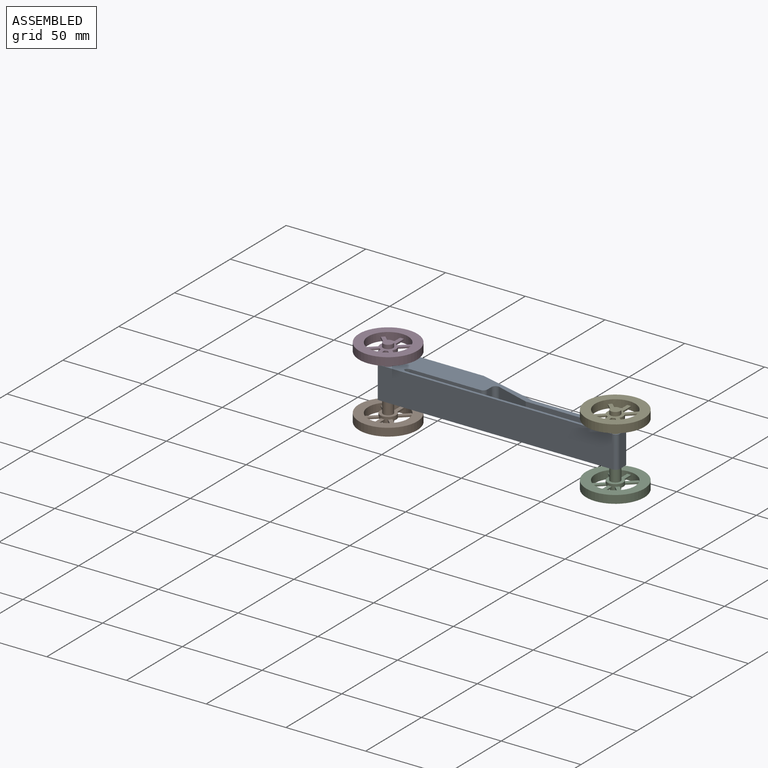
[diagram: assembled view]
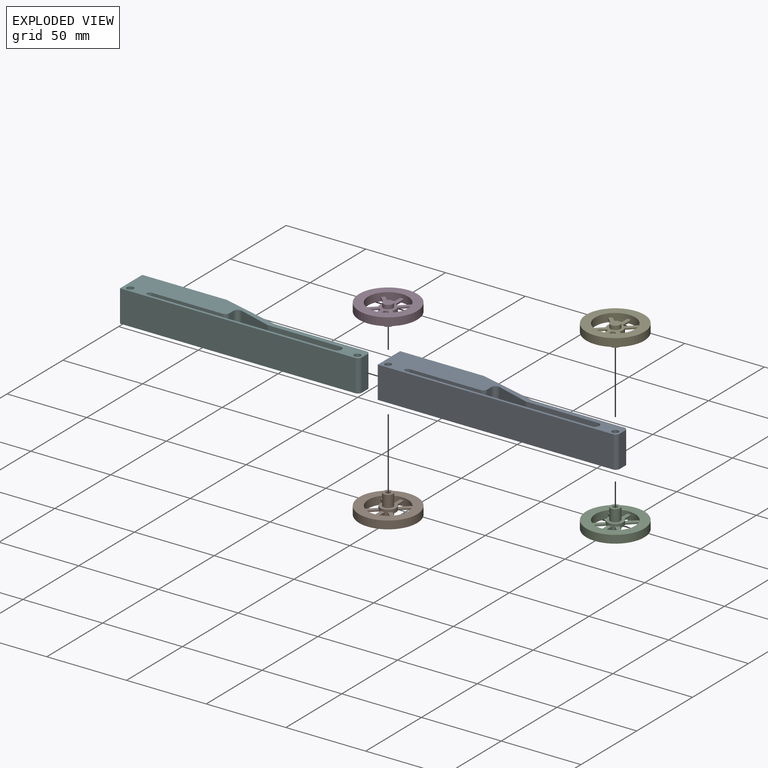
[diagram: exploded view]
GUIDED TOUR — MATED ASSEMBLY (Onshape document 84d9956565eaad3d689dac79, AutoMate assembly 84d9956565eaad3d689dac79_f02c0e8711fbdbb6772ed3fe_eb2f620efcead3a8645174b0_default)

This assembly has 6 components, labeled P0..P5 below (a component is one placed occurrence of a part; the same part can appear more than once), held together by 4 mates. A mate is a constraint between two components; its type names the relative motion it leaves free:
  REVOLUTE — leaves rotation about the listed axis free (a hinge).
Axis/direction vectors are unit vectors and 'through' points are millimeter coordinates, both in the assembly's world frame.

MATES
  1. REVOLUTE "Revolute 1": P4 <-> P0, axis (0.000, 0.000, -1.000) through (40.41, 37.32, 59.11) mm
  2. REVOLUTE "Revolute 3": P3 <-> P0, axis (0.000, 0.000, -1.000) through (-102.06, 37.32, 59.11) mm
  3. REVOLUTE "Revolute 4": P1 <-> P0, axis (0.000, 0.000, 1.000) through (-102.06, 37.32, 39.11) mm
  4. REVOLUTE "Revolute 2": P2 <-> P0, axis (0.000, 0.000, 1.000) through (40.41, 37.32, 39.11) mm

ASSEMBLY ORDER
  1. P0 — the base component [order heuristic]
  2. P5 — core [order heuristic]
  3. P2 [order verified]
  4. P1 [order verified]
  5. P3 [order verified]
  6. P4 [order verified]
Order-tag legend:
  [order verified] — this step's position reverses a verified removal order: the component was checked to insert without passing through the ones already placed.
  [order heuristic] — the first 2 components form the assembly's core: parts whose collision-free extraction could not be verified, listed in mate-graph order.

Of the 6 components, 2 carry the full construction recipe — the FeatureScript program that regenerates the part's solid from scratch; the rest are supplied as boundary geometry only.
Each toured component is shown spotlighted twice — in the assembled view, then in the exploded view, where a leader line traces a displaced component back to its assembled socket (saturated green if recipe-attached, orange if geometry-only; every other component desaturated gray) — followed by its recipe or geometry summary and the mates that hold it.
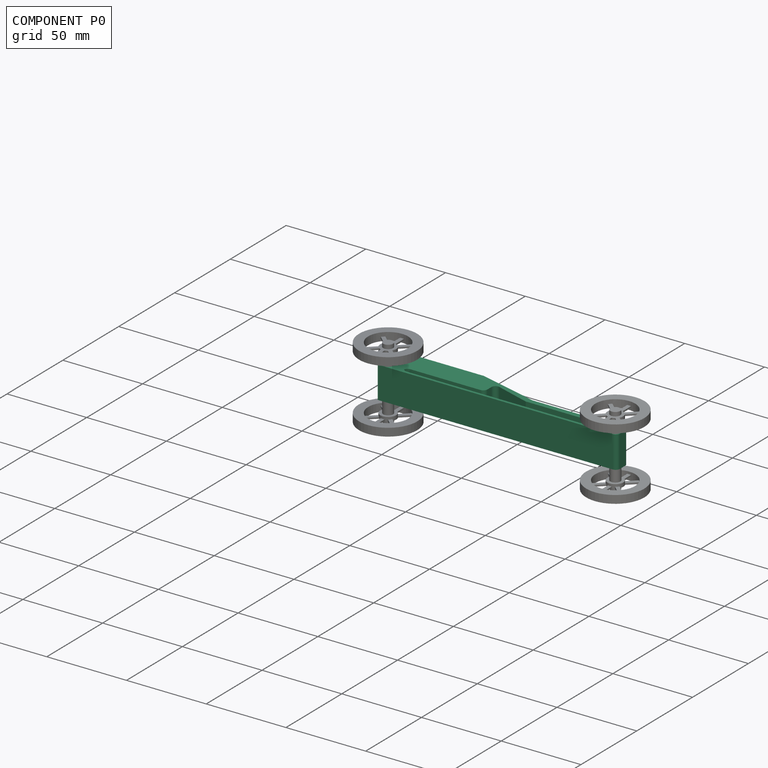
[diagram: component P0 — assembled]
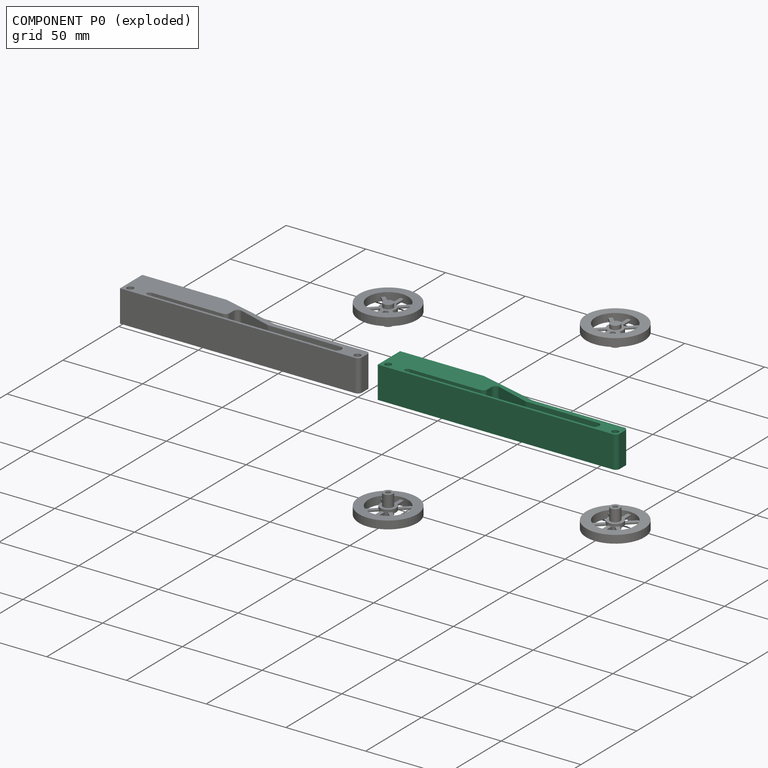
[diagram: component P0 — exploded]
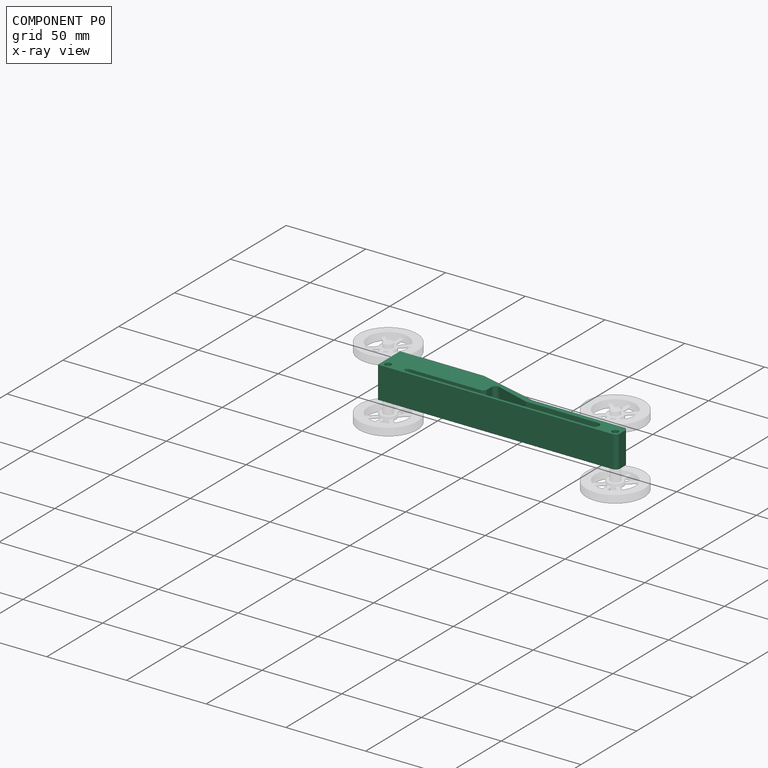
[diagram: component P0 — x-ray view]
COMPONENT P0 — recipe-attached (CADFS 00515033, mesh-verified: the recipe's output STEP matches this component's geometry to below the mesh-comparison resolution (tessellation chordal tolerance ~0.229 mm)).
Held by: REVOLUTE mate "Revolute 1" to P4; REVOLUTE mate "Revolute 3" to P3; REVOLUTE mate "Revolute 4" to P1; REVOLUTE mate "Revolute 2" to P2.
Construction recipe (FeatureScript — the CAD program that rebuilds this solid; sketch coordinates are in the units given by the * unit suffixes, e.g. mm):

FeatureScript 1511;
import(path : "onshape/std/geometry.fs", version : "1511.0");
import(path : "onshape/std/common.fs", version : "1511.0");
const mm = millimeter;
const VERTEX = EntityType.VERTEX;
const EDGE = EntityType.EDGE;
const FACE = EntityType.FACE;
const BODY = EntityType.BODY;
function v(x, y){return vector(x, y);}
function OD(order){return orderDisambiguation(order);}
function OSD(set){return originalSetDisambiguation(set);}
function TD(topology){return topologyDisambiguation(topology);}
function TDD(query){return trueDependencyDisambiguation(query);}
function sQuery(a, b, c) {return sketchEntityQuery(a, b, c);}

annotation { "Feature Type Name" : "Feature", "Feature Type Description" : "" }
export const myFeature = defineFeature(function(context is Context, id is Id, definition is map)
    precondition{}
    {
        {
            var Q0;
            Q0=qCreatedBy(makeId("Top.planeOp"),FACE);
            var sketch = newSketch(context, id + "F0", { "sketchPlane" : qUnion([Q0])});
            skLineSegment(sketch, "E0.bottom", {"start": v(-71.04, 71.64) * mm, "end": v(-51.04, 71.64) * mm});
            skLineSegment(sketch, "E0.top", {"start": v(-71.04, -78.36) * mm, "end": v(-51.04, -78.36) * mm});
            skLineSegment(sketch, "E0.left", {"start": v(-71.04, 71.64) * mm, "end": v(-71.04, -78.36) * mm});
            skLineSegment(sketch, "E0.right", {"start": v(-51.04, 71.64) * mm, "end": v(-51.04, -78.36) * mm});
            skSolve(sketch);
        }
        {
            var Q0;
            Q0=makeQuery(id+"F0.imprint","IMPRINT",FACE,{"disambiguationData":[TD([[makeQuery(id+"F0.imprint","IMPRINT",EDGE,{"derivedFrom":sQuery(id+"F0.wireOp",EDGE,"E0.bottom")}),-1.0]])]});
            extrude(context, id + "F1", {"entities" : qUnion([Q0]), "depth" : 10 * mm, "offsetDistance" : 25 * mm});
        }
        {
            var Q0;
            Q0=makeQuery(id+"FomEpZF3jwlUIwq_1.opExtrude","SWEPT_EDGE",EDGE,{"disambiguationData":[OSD([sQuery(id+"F0.wireOp",EDGE,"E0.left"),sQuery(id+"F1NLpkMIvdNk7jU_1.wireOp",EDGE,"JdDga99X-qCnD-vict-qKIc-81UAap1c88fU.top"),sQuery(id+"F1NLpkMIvdNk7jU_1.wireOp",EDGE,"JdDga99X-qCnD-vict-qKIc-81UAap1c88fU.right")])]});
            var Q1;
            Q1=makeQuery(id+"FomEpZF3jwlUIwq_1.opExtrude","CAP_EDGE",EDGE,{"disambiguationData":[OSD([sQuery(id+"F1NLpkMIvdNk7jU_1.wireOp",EDGE,"JdDga99X-qCnD-vict-qKIc-81UAap1c88fU.top")])],"isStart":false});
            var Q2;
            Q2=makeQuery(id+"F5s1CBushxTlWOC_1.boolean.opBoolean","MERGE",EDGE,{"derivedFrom":[makeQuery(id+"FomEpZF3jwlUIwq_1.boolean.opBoolean","MERGE",EDGE,{"derivedFrom":[makeQuery(id+"F1.opExtrude","CAP_EDGE",EDGE,{"disambiguationData":[OSD([sQuery(id+"F0.wireOp",EDGE,"E0.top")])],"isStart":false}),makeQuery(id+"FomEpZF3jwlUIwq_1.opExtrude","SWEPT_EDGE",EDGE,{"disambiguationData":[OSD([sQuery(id+"F1NLpkMIvdNk7jU_1.wireOp",EDGE,"JdDga99X-qCnD-vict-qKIc-81UAap1c88fU.top"),sQuery(id+"F1NLpkMIvdNk7jU_1.wireOp",EDGE,"JdDga99X-qCnD-vict-qKIc-81UAap1c88fU.left")])]})]}),makeQuery(id+"F5s1CBushxTlWOC_1.opExtrude","SWEPT_EDGE",EDGE,{"disambiguationData":[OSD([sQuery(id+"FOXx8H1SDtEovMQ_1.wireOp",EDGE,"FEWDH13M-Medy-eiIw-sagk-Jp41e8USBhHK.top"),sQuery(id+"FOXx8H1SDtEovMQ_1.wireOp",EDGE,"FEWDH13M-Medy-eiIw-sagk-Jp41e8USBhHK.left")])]})]});
            var Q3;
            Q3=makeQuery(id+"F5s1CBushxTlWOC_1.opExtrude","SWEPT_EDGE",EDGE,{"disambiguationData":[OSD([sQuery(id+"F0.wireOp",EDGE,"E0.right"),sQuery(id+"FOXx8H1SDtEovMQ_1.wireOp",EDGE,"FEWDH13M-Medy-eiIw-sagk-Jp41e8USBhHK.top"),sQuery(id+"FOXx8H1SDtEovMQ_1.wireOp",EDGE,"FEWDH13M-Medy-eiIw-sagk-Jp41e8USBhHK.right")])]});
            var Q4;
            Q4=makeQuery(id+"F5s1CBushxTlWOC_1.opExtrude","CAP_EDGE",EDGE,{"disambiguationData":[OSD([sQuery(id+"FOXx8H1SDtEovMQ_1.wireOp",EDGE,"FEWDH13M-Medy-eiIw-sagk-Jp41e8USBhHK.top")])],"isStart":false});
            var Q5;
            Q5=makeQuery(id+"F5s1CBushxTlWOC_1.opExtrude","CAP_EDGE",EDGE,{"disambiguationData":[OSD([sQuery(id+"FOXx8H1SDtEovMQ_1.wireOp",EDGE,"FEWDH13M-Medy-eiIw-sagk-Jp41e8USBhHK.left")])],"isStart":false});
            var Q6;
            Q6=makeQuery(id+"FomEpZF3jwlUIwq_1.opExtrude","CAP_EDGE",EDGE,{"disambiguationData":[OSD([sQuery(id+"F1NLpkMIvdNk7jU_1.wireOp",EDGE,"JdDga99X-qCnD-vict-qKIc-81UAap1c88fU.left")])],"isStart":false});
            var Q7;
            Q7=makeQuery(id+"FomEpZF3jwlUIwq_1.opExtrude","CAP_EDGE",EDGE,{"disambiguationData":[OSD([sQuery(id+"F1NLpkMIvdNk7jU_1.wireOp",EDGE,"JdDga99X-qCnD-vict-qKIc-81UAap1c88fU.right")])],"isStart":false});
            var Q8;
            Q8=makeQuery(id+"F5s1CBushxTlWOC_1.opExtrude","CAP_EDGE",EDGE,{"disambiguationData":[OSD([sQuery(id+"FOXx8H1SDtEovMQ_1.wireOp",EDGE,"FEWDH13M-Medy-eiIw-sagk-Jp41e8USBhHK.right")])],"isStart":false});
            var Q9;
            Q9=makeQuery(id+"F5s1CBushxTlWOC_1.opExtrude","CAP_EDGE",EDGE,{"disambiguationData":[OSD([sQuery(id+"FOXx8H1SDtEovMQ_1.wireOp",EDGE,"FEWDH13M-Medy-eiIw-sagk-Jp41e8USBhHK.bottom")])],"isStart":false});
            var Q10;
            Q10=makeQuery(id+"F5s1CBushxTlWOC_1.boolean.opBoolean","MERGE",EDGE,{"derivedFrom":[makeQuery(id+"FomEpZF3jwlUIwq_1.boolean.opBoolean","MERGE",EDGE,{"derivedFrom":[makeQuery(id+"F1.opExtrude","CAP_EDGE",EDGE,{"disambiguationData":[OSD([sQuery(id+"F0.wireOp",EDGE,"E0.top")])],"isStart":true}),makeQuery(id+"FomEpZF3jwlUIwq_1.opExtrude","SWEPT_EDGE",EDGE,{"disambiguationData":[OSD([sQuery(id+"F1NLpkMIvdNk7jU_1.wireOp",EDGE,"JdDga99X-qCnD-vict-qKIc-81UAap1c88fU.bottom"),sQuery(id+"F1NLpkMIvdNk7jU_1.wireOp",EDGE,"JdDga99X-qCnD-vict-qKIc-81UAap1c88fU.left")])]})]}),makeQuery(id+"F5s1CBushxTlWOC_1.opExtrude","SWEPT_EDGE",EDGE,{"disambiguationData":[OSD([sQuery(id+"FOXx8H1SDtEovMQ_1.wireOp",EDGE,"FEWDH13M-Medy-eiIw-sagk-Jp41e8USBhHK.bottom"),sQuery(id+"FOXx8H1SDtEovMQ_1.wireOp",EDGE,"FEWDH13M-Medy-eiIw-sagk-Jp41e8USBhHK.left")])]})]});
            var Q11;
            Q11=makeQuery(id+"FomEpZF3jwlUIwq_1.opExtrude","CAP_EDGE",EDGE,{"disambiguationData":[OSD([sQuery(id+"F1NLpkMIvdNk7jU_1.wireOp",EDGE,"JdDga99X-qCnD-vict-qKIc-81UAap1c88fU.bottom")])],"isStart":false});
            var Q12;
            Q12=makeQuery(id+"F5s1CBushxTlWOC_1.opExtrude","SWEPT_EDGE",EDGE,{"disambiguationData":[OSD([sQuery(id+"F0.wireOp",EDGE,"E0.right"),sQuery(id+"FOXx8H1SDtEovMQ_1.wireOp",EDGE,"FEWDH13M-Medy-eiIw-sagk-Jp41e8USBhHK.bottom"),sQuery(id+"FOXx8H1SDtEovMQ_1.wireOp",EDGE,"FEWDH13M-Medy-eiIw-sagk-Jp41e8USBhHK.right")])]});
            var Q13;
            Q13=makeQuery(id+"FomEpZF3jwlUIwq_1.opExtrude","SWEPT_EDGE",EDGE,{"disambiguationData":[OSD([sQuery(id+"F0.wireOp",EDGE,"E0.left"),sQuery(id+"F1NLpkMIvdNk7jU_1.wireOp",EDGE,"JdDga99X-qCnD-vict-qKIc-81UAap1c88fU.bottom"),sQuery(id+"F1NLpkMIvdNk7jU_1.wireOp",EDGE,"JdDga99X-qCnD-vict-qKIc-81UAap1c88fU.right")])]});
            fillet(context, id + "F2", {"entities" : qUnion([Q0, Q1, Q2, Q3, Q4, Q5, Q6, Q7, Q8, Q9, Q10, Q11, Q12, Q13]), "radius" : 2.5 * mm, "tangentPropagation" : true, "allowEdgeOverflow" : false});
        }
        {
            var Q0;
            {var subQ0=sQuery(id+"Fe1uJ81IbgYl2Ml_1.wireOp",EDGE,"cKE2W4Qr-xIU3-4X3f-CdDW-XdCW86x1bF6O.right");var subQ1=sQuery(id+"F0.wireOp",EDGE,"E0.right");Q0=makeQuery(id+"FoZkqRhm2qEG9oC_1.boolean.opBoolean","MERGE",FACE,{"derivedFrom":[makeQuery(id+"FjW8aT6Y56iKWgf_1.boolean.opBoolean","MERGE",FACE,{"derivedFrom":[makeQuery(id+"F1.opExtrude","SWEPT_FACE",FACE,{"disambiguationData":[OSD([subQ1])]}),makeQuery(id+"FjW8aT6Y56iKWgf_1.opExtrude","SWEPT_FACE",FACE,{"disambiguationData":[OSD([subQ0])]})]}),makeQuery(id+"FoZkqRhm2qEG9oC_1.opExtrude","SWEPT_FACE",FACE,{"disambiguationData":[OSD([subQ1,sQuery(id+"Fe1uJ81IbgYl2Ml_1.wireOp",EDGE,"cKE2W4Qr-xIU3-4X3f-CdDW-XdCW86x1bF6O.top"),subQ0])]})]});}
            var sketch = newSketch(context, id + "F3", { "sketchPlane" : qUnion([Q0])});
            skCircle(sketch, "E1", {"center": v(-74.99, 3.34) * mm, "radius": 2 * mm});
            skCircle(sketch, "E2", {"center": v(67.48, 3.34) * mm, "radius": 2 * mm});
            skSolve(sketch);
        }
        {
            var Q0;
            Q0=makeQuery(id+"F3.imprint","IMPRINT",FACE,{"disambiguationData":[TD([[makeQuery(id+"F3.imprint","IMPRINT",EDGE,{"derivedFrom":sQuery(id+"F3.wireOp",EDGE,"E1")}),1.0]])]});
            extrude(context, id + "F4", {"entities" : qUnion([Q0]), "operationType" : NewBodyOperationType.REMOVE, "oppositeDirection" : true, "depth" : 60 * mm, "offsetDistance" : 25 * mm});
        }
        {
            var Q0;
            Q0=makeQuery(id+"F1.opExtrude","CAP_FACE",FACE,{"disambiguationData":[OSD([sQuery(id+"F0.wireOp",EDGE,"E0.bottom"),sQuery(id+"F0.wireOp",EDGE,"E0.top"),sQuery(id+"F0.wireOp",EDGE,"E0.left"),sQuery(id+"F0.wireOp",EDGE,"E0.right")])],"isStart":false});
            var sketch = newSketch(context, id + "F5", { "sketchPlane" : qUnion([Q0])});
            skLineSegment(sketch, "E3", {"start": v(-51.04, 71.64) * mm, "end": v(-51.04, -18.36) * mm});
            skLineSegment(sketch, "E4", {"start": v(-51.04, -18.36) * mm, "end": v(-71.04, -18.36) * mm});
            skSolve(sketch);
        }
        {
            var Q0;
            Q0=makeQuery(id+"F5.imprint","IMPRINT",FACE,{"disambiguationData":[TD([[makeQuery(id+"F5.imprint","IMPRINT",EDGE,{"derivedFrom":sQuery(id+"F5.wireOp",EDGE,"E3")}),-1.0]])]});
            extrude(context, id + "F6", {"entities" : qUnion([Q0]), "operationType" : NewBodyOperationType.ADD, "depth" : 10 * mm, "offsetDistance" : 25 * mm});
        }
        {
            var Q0;
            Q0=makeQuery(id+"F6.opExtrude","CAP_EDGE",EDGE,{"disambiguationData":[OSD([sQuery(id+"F5.wireOp",EDGE,"E4")])],"isStart":false});
            chamfer(context, id + "F7", {"entities" : qUnion([Q0]), "chamferType" : ChamferType.OFFSET_ANGLE, "width" : 10 * mm, "oppositeDirection" : false, "angle" : 75 * degree, "tangentPropagation" : true});
        }
        {
            var Q0;
            {var subQ0=sQuery(id+"F0.wireOp",EDGE,"E0.bottom");Q0=makeQuery(id+"F6.boolean.opBoolean","MERGE",FACE,{"derivedFrom":[makeQuery(id+"F1.opExtrude","SWEPT_FACE",FACE,{"disambiguationData":[OSD([subQ0])]}),makeQuery(id+"F6.opExtrude","SWEPT_FACE",FACE,{"disambiguationData":[OSD([subQ0])]})]});}
            var sketch = newSketch(context, id + "F8", { "sketchPlane" : qUnion([Q0])});
            skCircle(sketch, "E5", {"center": v(61.04, 11.46) * mm, "radius": 5 * mm});
            skPoint(sketch, "E5.centerSnap0", {"position": v(61.04, 20) * mm});
            skSolve(sketch);
        }
        {
            var Q0;
            Q0=makeQuery(id+"F8.imprint","IMPRINT",FACE,{"disambiguationData":[TD([[makeQuery(id+"F8.imprint","IMPRINT",EDGE,{"derivedFrom":sQuery(id+"F8.wireOp",EDGE,"E5")}),1.0]])]});
            extrude(context, id + "F9", {"entities" : qUnion([Q0]), "operationType" : NewBodyOperationType.REMOVE, "oppositeDirection" : true, "depth" : 60 * mm, "offsetDistance" : 25 * mm});
        }
        {
            var Q0;
            Q0=makeQuery(id+"F3.imprint","IMPRINT",FACE,{"disambiguationData":[TD([[makeQuery(id+"F3.imprint","IMPRINT",EDGE,{"derivedFrom":sQuery(id+"F3.wireOp",EDGE,"E2")}),1.0]])]});
            extrude(context, id + "F10", {"entities" : qUnion([Q0]), "operationType" : NewBodyOperationType.REMOVE, "oppositeDirection" : true, "depth" : 50 * mm, "offsetDistance" : 25 * mm});
        }
        {
            var Q0;
            {var subQ0=sQuery(id+"F0.wireOp",EDGE,"E0.left");Q0=makeQuery(id+"F6.boolean.opBoolean","MERGE",FACE,{"derivedFrom":[makeQuery(id+"F1.opExtrude","SWEPT_FACE",FACE,{"disambiguationData":[OSD([subQ0])]}),makeQuery(id+"F6.opExtrude","SWEPT_FACE",FACE,{"disambiguationData":[OSD([subQ0])]})]});}
            var sketch = newSketch(context, id + "F11", { "sketchPlane" : qUnion([Q0])});
            skLineSegment(sketch, "E6", {"start": v(-8.18, 14.6) * mm, "end": v(-8.18, 6.87) * mm});
            skLineSegment(sketch, "E7", {"start": v(-8.18, 6.87) * mm, "end": v(16.33, 6.87) * mm});
            skLineSegment(sketch, "E8", {"start": v(16.33, 6.87) * mm, "end": v(-8.18, 14.6) * mm});
            skLineSegment(sketch, "E9", {"start": v(-57.32, 4.96) * mm, "end": v(-57.32, 1.59) * mm});
            skLineSegment(sketch, "E10", {"start": v(-57.32, 1.59) * mm, "end": v(64.28, 1.59) * mm});
            skLineSegment(sketch, "E11", {"start": v(64.28, 1.59) * mm, "end": v(64.28, 6.87) * mm});
            skLineSegment(sketch, "E12", {"start": v(64.28, 6.87) * mm, "end": v(16.33, 6.87) * mm});
            skLineSegment(sketch, "E13", {"start": v(-57.32, 4.96) * mm, "end": v(-8.18, 4.96) * mm});
            skLineSegment(sketch, "E14", {"start": v(-8.18, 4.96) * mm, "end": v(-8.18, 6.87) * mm});
            skSolve(sketch);
        }
        {
            var Q0;
            Q0=makeQuery(id+"F11.imprint","IMPRINT",FACE,{"disambiguationData":[TD([[makeQuery(id+"F11.imprint","IMPRINT",EDGE,{"derivedFrom":sQuery(id+"F11.wireOp",EDGE,"E7")}),-1.0]])]});
            var Q1;
            Q1=makeQuery(id+"F11.imprint","IMPRINT",FACE,{"disambiguationData":[TD([[makeQuery(id+"F11.imprint","IMPRINT",EDGE,{"derivedFrom":sQuery(id+"F11.wireOp",EDGE,"E6")}),1.0]])]});
            extrude(context, id + "F12", {"entities" : qUnion([Q0, Q1]), "operationType" : NewBodyOperationType.REMOVE, "oppositeDirection" : true, "depth" : 40 * mm, "offsetDistance" : 25 * mm});
        }
        {
            var Q0;
            Q0=makeQuery(id+"F12.boolean.opBoolean","COPY",EDGE,{"derivedFrom":makeQuery(id+"F12.opExtrude","SWEPT_EDGE",EDGE,{"disambiguationData":[OSD([sQuery(id+"F11.wireOp",EDGE,"E6"),sQuery(id+"F11.wireOp",EDGE,"E8")])]})});
            var Q1;
            Q1=makeQuery(id+"F12.boolean.opBoolean","COPY",EDGE,{"derivedFrom":makeQuery(id+"F12.opExtrude","SWEPT_EDGE",EDGE,{"disambiguationData":[OSD([sQuery(id+"F11.wireOp",EDGE,"E13"),sQuery(id+"F11.wireOp",EDGE,"E14")])]})});
            var Q2;
            Q2=makeQuery(id+"F12.boolean.opBoolean","COPY",EDGE,{"derivedFrom":makeQuery(id+"F12.opExtrude","SWEPT_EDGE",EDGE,{"disambiguationData":[OSD([sQuery(id+"F11.wireOp",EDGE,"E11"),sQuery(id+"F11.wireOp",EDGE,"E12")])]})});
            var Q3;
            Q3=makeQuery(id+"F12.boolean.opBoolean","COPY",EDGE,{"derivedFrom":makeQuery(id+"F12.opExtrude","SWEPT_EDGE",EDGE,{"disambiguationData":[OSD([sQuery(id+"F11.wireOp",EDGE,"E10"),sQuery(id+"F11.wireOp",EDGE,"E11")])]})});
            var Q4;
            Q4=makeQuery(id+"F12.boolean.opBoolean","COPY",EDGE,{"derivedFrom":makeQuery(id+"F12.opExtrude","SWEPT_EDGE",EDGE,{"disambiguationData":[OSD([sQuery(id+"F11.wireOp",EDGE,"E9"),sQuery(id+"F11.wireOp",EDGE,"E10")])]})});
            var Q5;
            Q5=makeQuery(id+"F12.boolean.opBoolean","COPY",EDGE,{"derivedFrom":makeQuery(id+"F12.opExtrude","SWEPT_EDGE",EDGE,{"disambiguationData":[OSD([sQuery(id+"F11.wireOp",EDGE,"E9"),sQuery(id+"F11.wireOp",EDGE,"E13")])]})});
            fillet(context, id + "F13", {"entities" : qUnion([Q0, Q1, Q2, Q3, Q4, Q5]), "radius" : 2.5 * mm, "tangentPropagation" : true, "allowEdgeOverflow" : false});
        }
        {
            var Q0;
            Q0=makeQuery(id+"F1.opExtrude","SWEPT_BODY",BODY,{"disambiguationData":[OSD([sQuery(id+"F0.wireOp",EDGE,"E0.bottom"),sQuery(id+"F0.wireOp",EDGE,"E0.top"),sQuery(id+"F0.wireOp",EDGE,"E0.left"),sQuery(id+"F0.wireOp",EDGE,"E0.right")])]});
            var Q1;
            Q1=makeQuery(id+"F6.opExtrude","CAP_EDGE",EDGE,{"disambiguationData":[OSD([sQuery(id+"F5.wireOp",EDGE,"E3")])],"isStart":false});
            transform(context, id + "F14", {"entities" : qUnion([Q0]), "transformType" : TransformType.ROTATION, "transformAxis" : qUnion([Q1]), "angle" : 90 * degree, "oppositeDirection" : true, "makeCopy" : false});
        }
    });
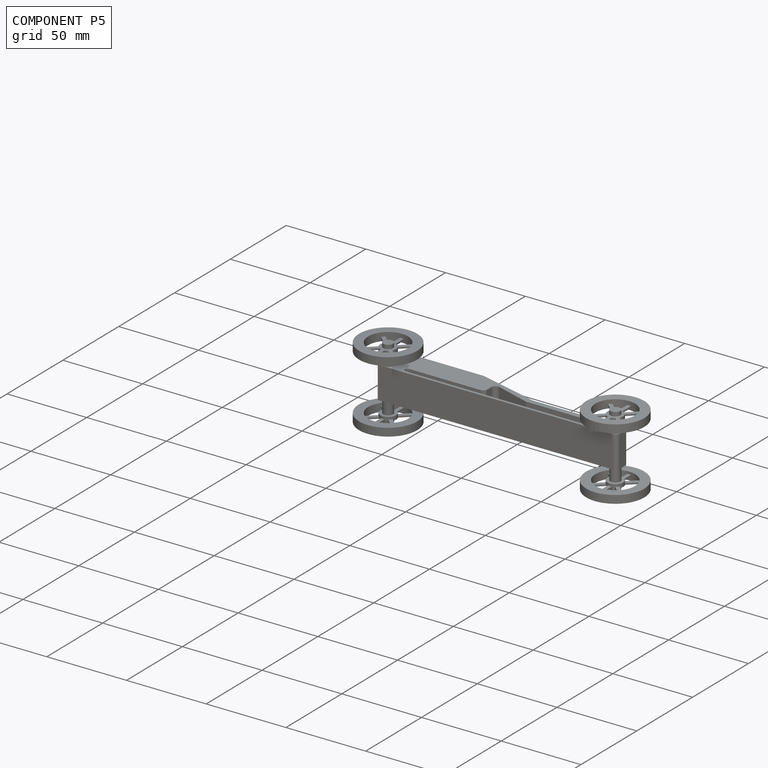
[diagram: component P5 — assembled]
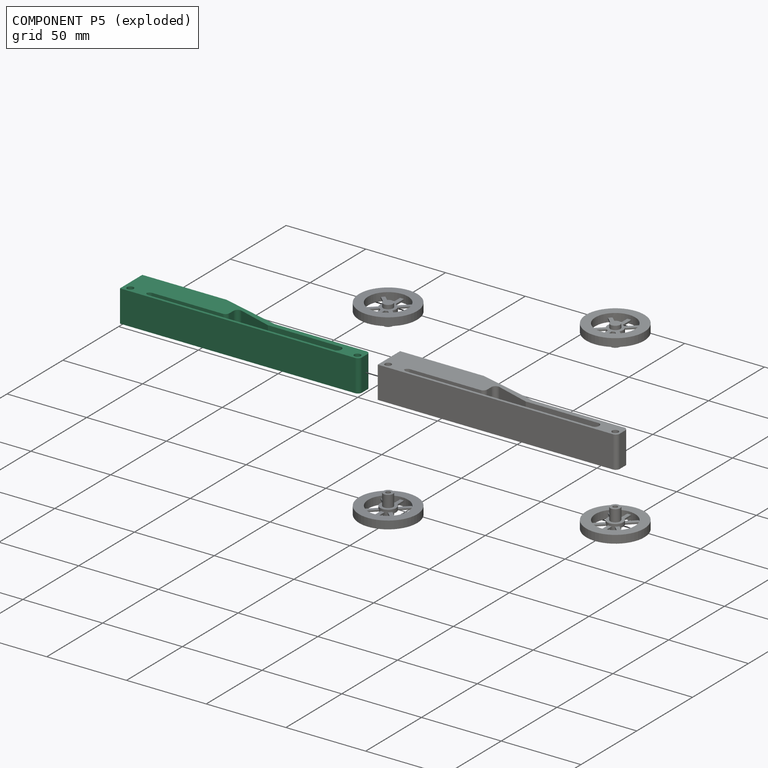
[diagram: component P5 — exploded]
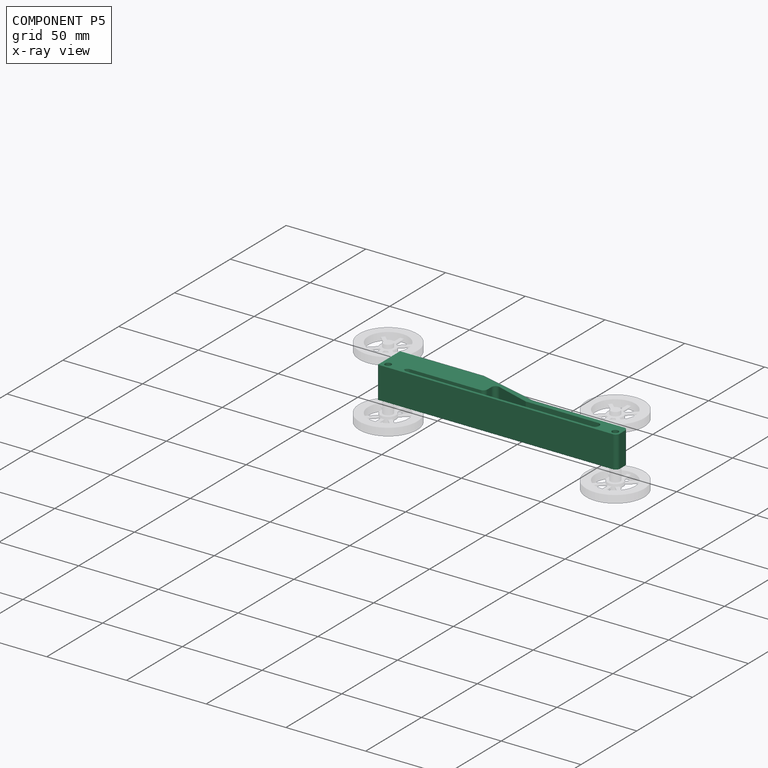
[diagram: component P5 — x-ray view]
COMPONENT P5 — same part as P0 (CADFS 00515033); its construction recipe is shown at P0.
Held by: no mates (free).
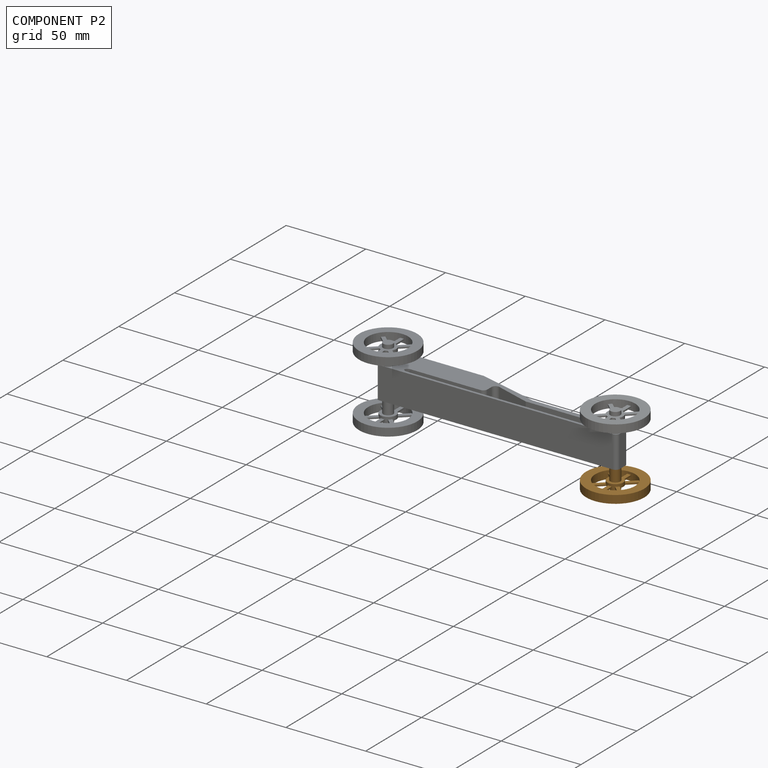
[diagram: component P2 — assembled]
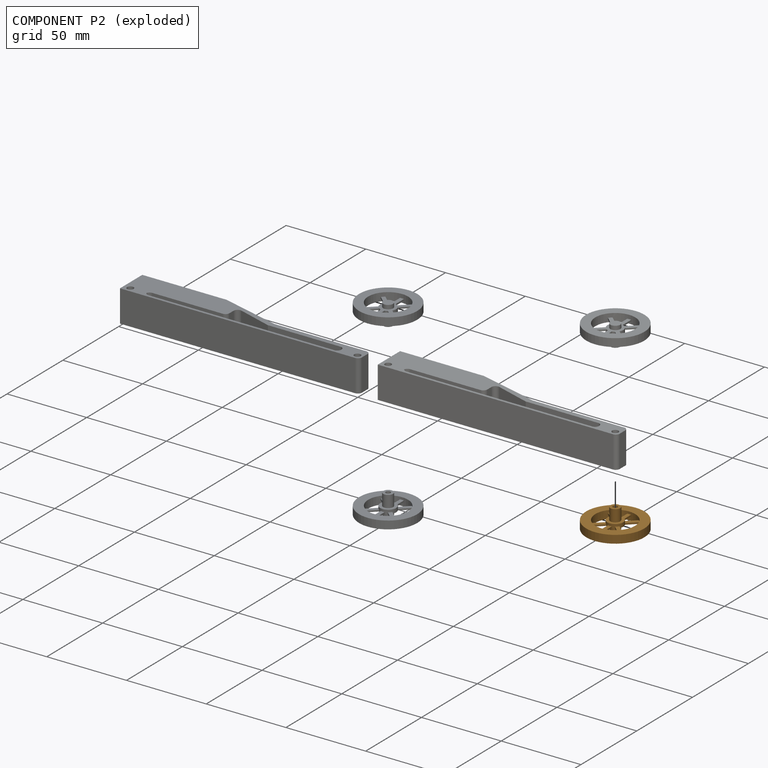
[diagram: component P2 — exploded]
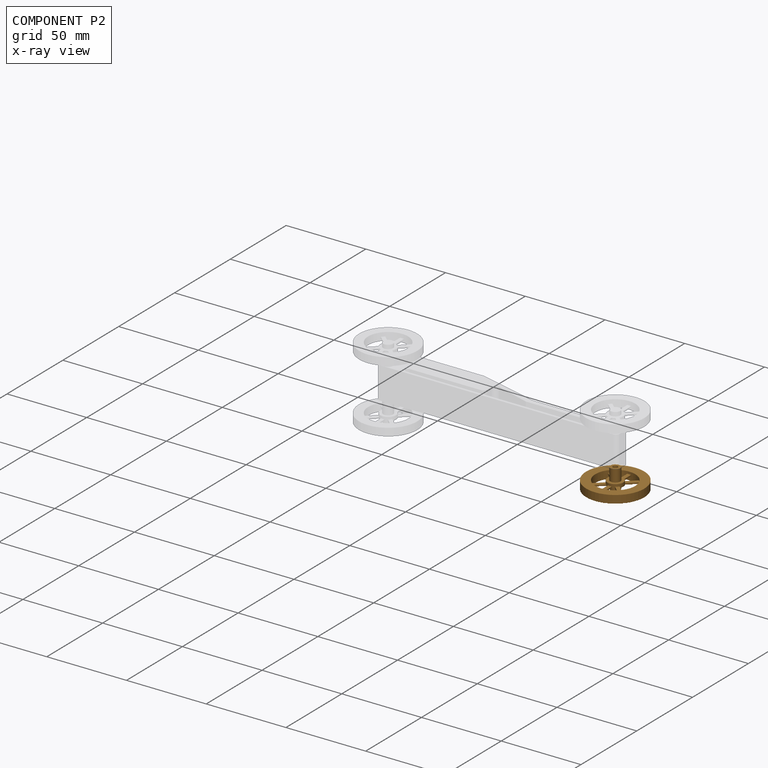
[diagram: component P2 — x-ray view]
COMPONENT P2 — geometry summary (no construction recipe available for this part):
  bounding box: 36.4 x 36.4 x 12.5 mm
  B-rep topology: 1 solid, 31 faces, 180 edges
  volume: 3284 mm^3 (20% of its bounding box)
  symmetry: 2-fold rotationally symmetric about the y axis; mirror-symmetric across its x mid-plane, z mid-plane
Held by: REVOLUTE mate "Revolute 2" to P0.
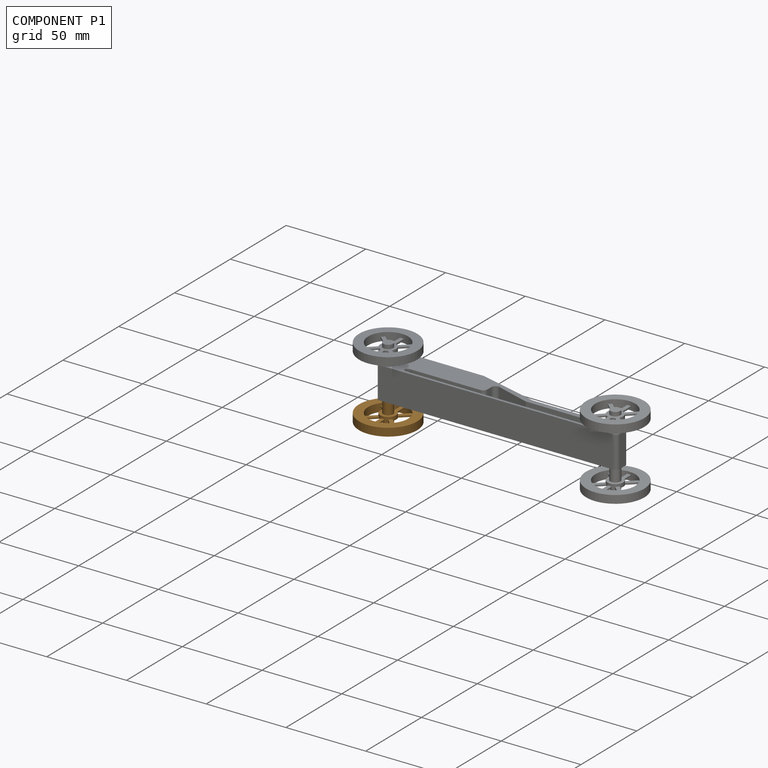
[diagram: component P1 — assembled]
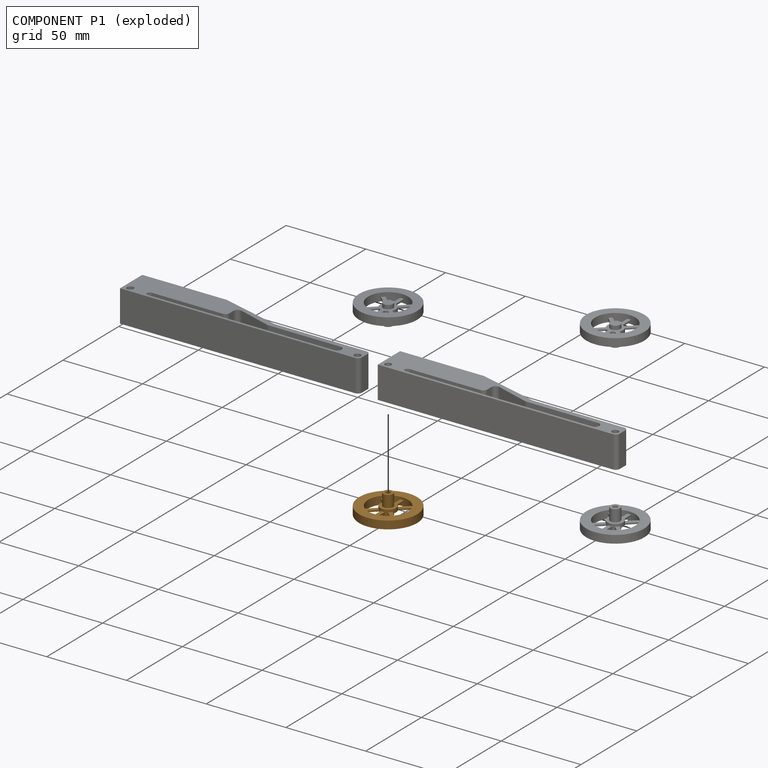
[diagram: component P1 — exploded]
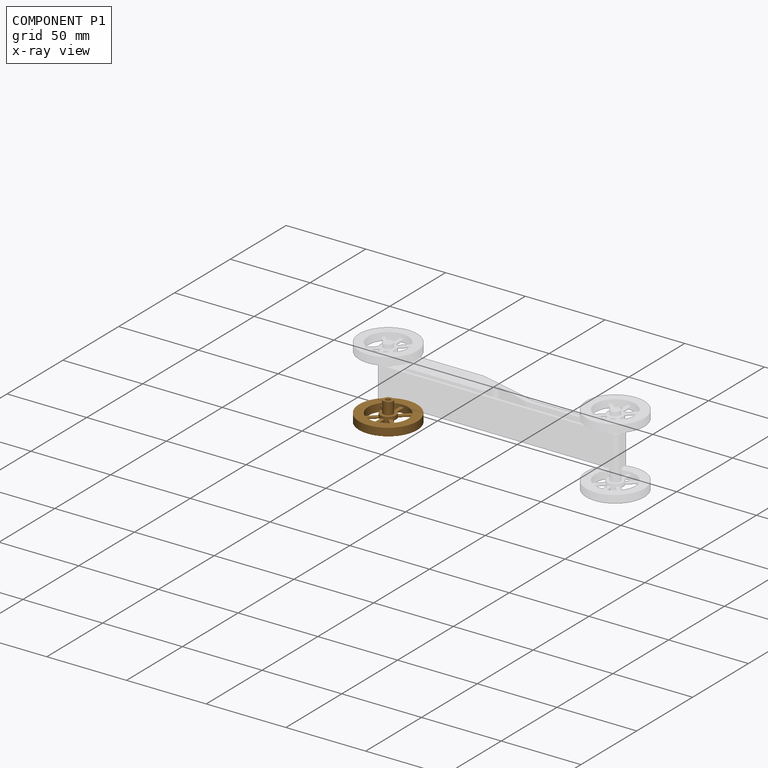
[diagram: component P1 — x-ray view]
COMPONENT P1 — geometry summary (no construction recipe available for this part):
  bounding box: 36.4 x 36.4 x 12.5 mm
  B-rep topology: 1 solid, 31 faces, 180 edges
  volume: 3284 mm^3 (20% of its bounding box)
  symmetry: 2-fold rotationally symmetric about the y axis; mirror-symmetric across its x mid-plane, z mid-plane
Held by: REVOLUTE mate "Revolute 4" to P0.
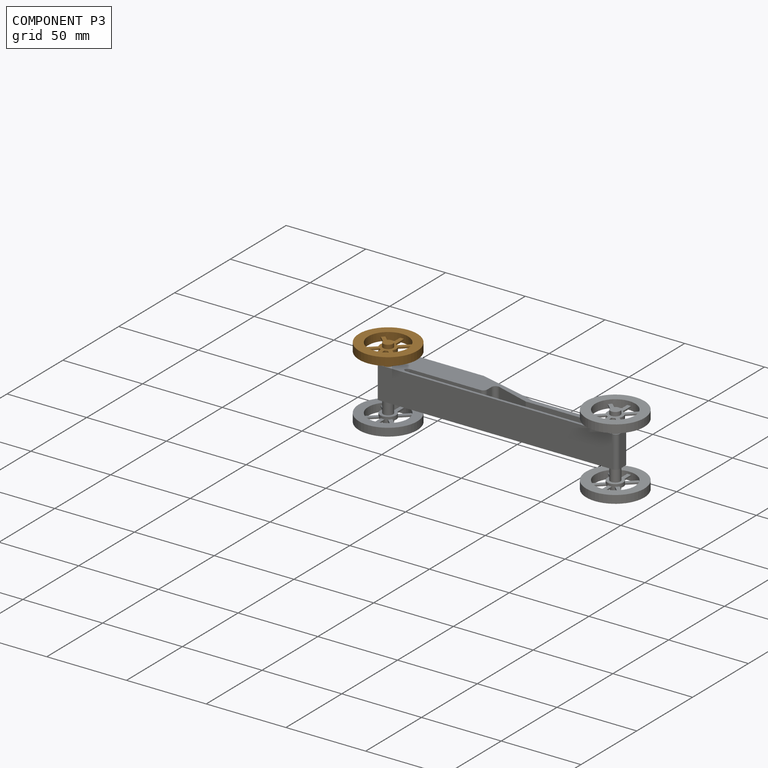
[diagram: component P3 — assembled]
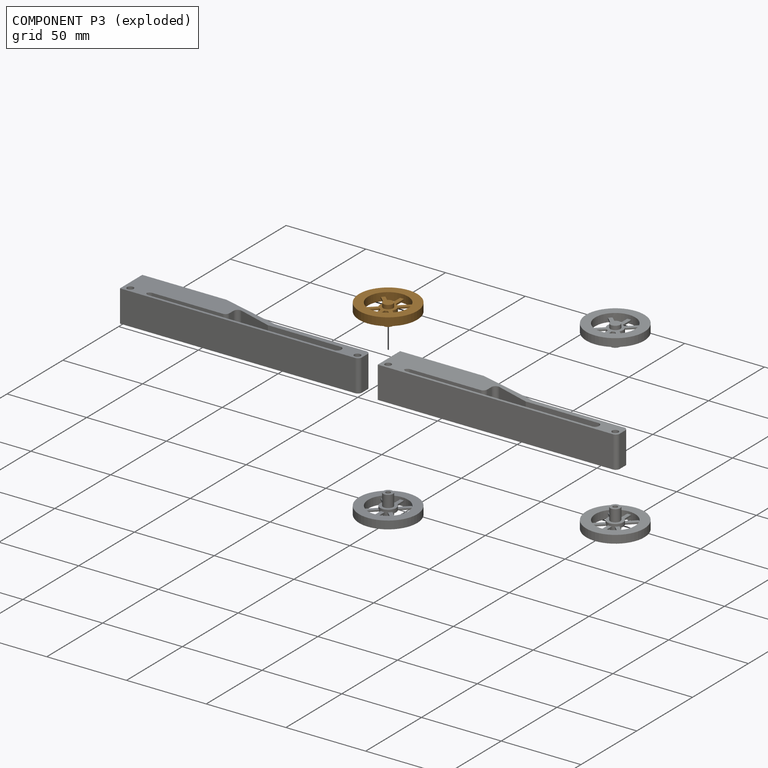
[diagram: component P3 — exploded]
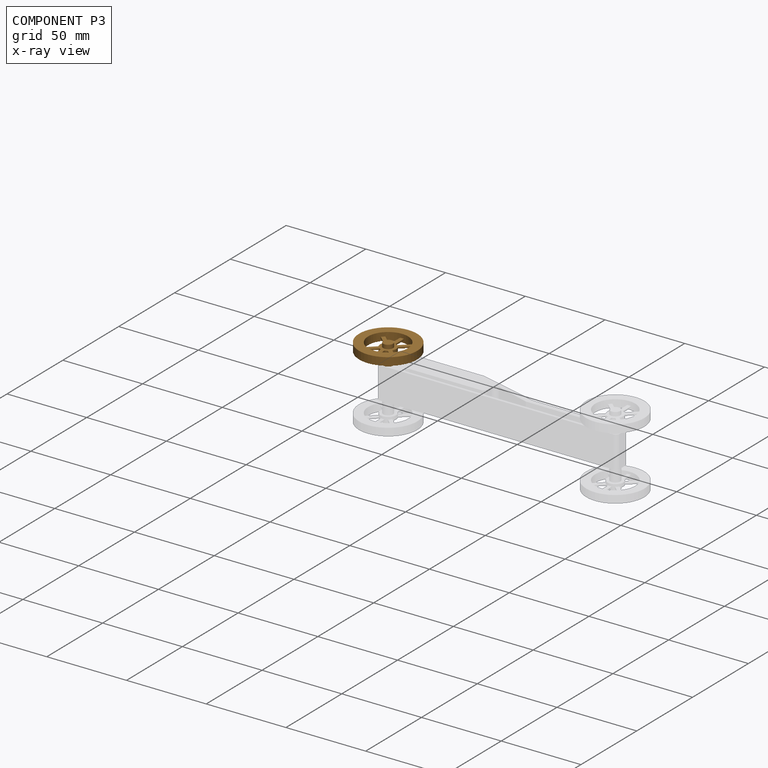
[diagram: component P3 — x-ray view]
COMPONENT P3 — geometry summary (no construction recipe available for this part):
  bounding box: 36.4 x 36.4 x 12.5 mm
  B-rep topology: 1 solid, 31 faces, 180 edges
  volume: 3284 mm^3 (20% of its bounding box)
  symmetry: 2-fold rotationally symmetric about the y axis; mirror-symmetric across its x mid-plane, z mid-plane
Held by: REVOLUTE mate "Revolute 3" to P0.
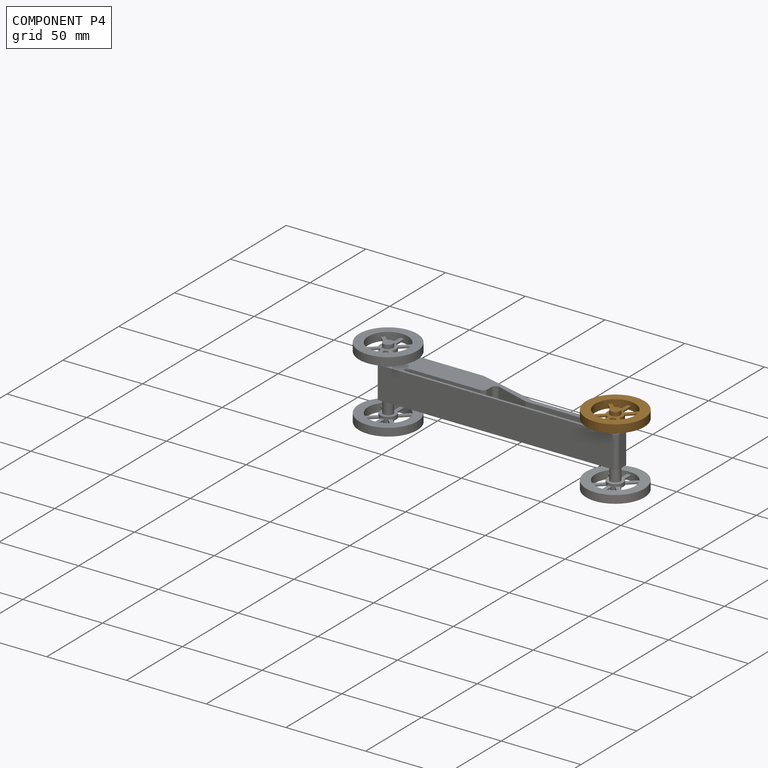
[diagram: component P4 — assembled]
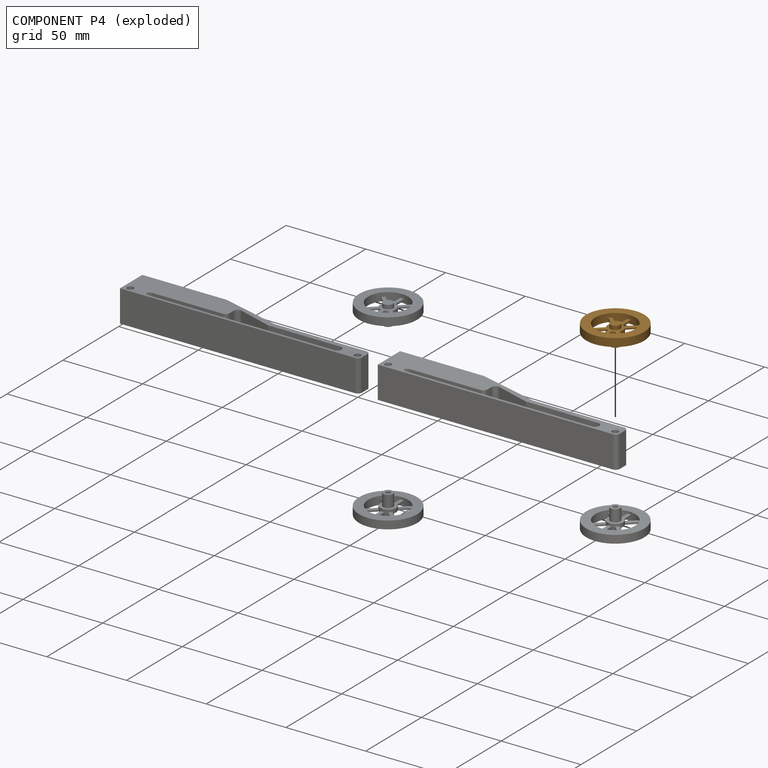
[diagram: component P4 — exploded]
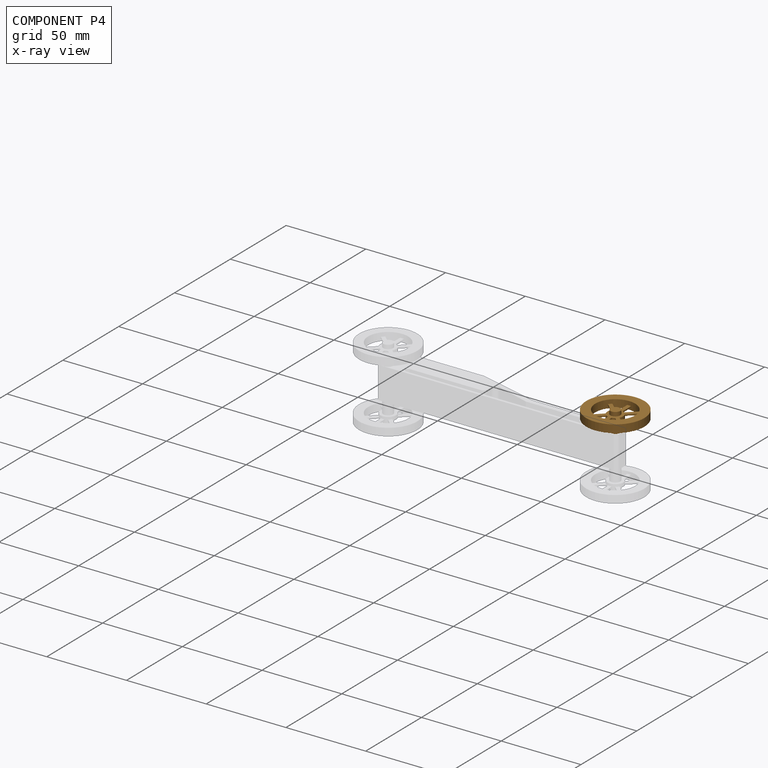
[diagram: component P4 — x-ray view]
COMPONENT P4 — geometry summary (no construction recipe available for this part):
  bounding box: 36.4 x 36.4 x 12.5 mm
  B-rep topology: 1 solid, 31 faces, 180 edges
  volume: 3284 mm^3 (20% of its bounding box)
  symmetry: 2-fold rotationally symmetric about the y axis; mirror-symmetric across its x mid-plane, z mid-plane
Held by: REVOLUTE mate "Revolute 1" to P0.
PROVENANCE & LICENSES
Assembly (occurrences, transforms, mates, per-part STEP geometry): AutoMate dataset, Zenodo record 7776208, CC0.
Construction recipes: CADFS (HuggingFace VladPyatov/CADFS, CC-BY-4.0, layered over the ABC dataset), FeatureScript reconstruction programs keyed by ABC model id.
Join: ABC meta listings map ABC model id -> Onshape documentId; within a shared document, parts are matched by geometric signature (bounding-box dims + volume at 0.1% relative tolerance, exact B-rep face/solid counts).
Verification: 2 of this assembly's 6 components carry a recipe attachment, and every attachment is mesh-verified: the CADFS STEP and the AutoMate member STEP were compared as meshes in their shared local frame (symmetric sampled-point-to-mesh distance); worst across the 2 attachments: below the mesh-comparison resolution (tessellation chordal tolerance ~0.229 mm) on a 153 mm part.
Renders: orthographic iso camera (az 35 / el 25); the floor grid conveys scale (grid pitch printed in each image; no ruler). In the exploded view each component is displaced by its stored offset vector: the offsets alone carry the explosion direction (mate normal/axis signs are not orientation cues and do not encode it), and separation distances are assigned per mate-chain, not proportionally to assembly-order depth.
